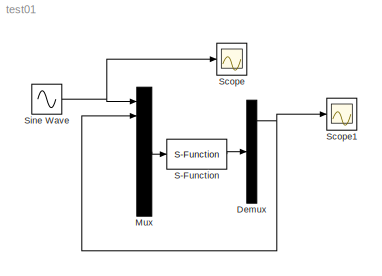
MODEL test01
KIND model
CONFIG AbsTol = auto
CONFIG FixedStep = 1/4000
CONFIG MaxStep = auto
CONFIG MinStep = auto
CONFIG RelTol = 1e-3
CONFIG Solver = FixedStepDiscrete
CONFIG SolverMode = Auto
CONFIG StartTime = 0.0
CONFIG StopTime = 120
BLOCK [Demux] Demux
  BusSelectionMode = off
  Outputs = 4
  Ports = [1, 4]
BLOCK [Mux] Mux
  DisplayOption = bar
  Inputs = 8
  Ports = [8, 1]
BLOCK [S-Function] S-Function
  FunctionName = sf_qadscope
  OpenFcn = clear all; rtscope
  Parameters = 4000
  PortCounts = []
  Ports = [1, 1]
  SFunctionModules = ''
BLOCK [Scope] Scope
  DataFormat = StructureWithTime
  Decimation = 1
  Floating = off
  Grid = on
  LimitDataPoints = on
  MaxDataPoints = 5000
  NumInputPorts = 1
  Ports = [1]
  SampleInput = off
  SampleTime = 0
  SaveName = ScopeData
  SaveToWorkspace = off
  TickLabels = OneTimeTick
  TimeRange = 1
  YMax = 5
  YMin = -5
  ZoomMode = on
BLOCK [Scope] Scope1
  DataFormat = StructureWithTime
  Decimation = 1
  Floating = off
  Grid = on
  LimitDataPoints = on
  MaxDataPoints = 5000
  NumInputPorts = 1
  Ports = [1]
  SampleInput = off
  SampleTime = 0
  SaveName = ScopeData1
  SaveToWorkspace = off
  TickLabels = OneTimeTick
  TimeRange = 1
  YMax = 1
  YMin = -1
  ZoomMode = on
BLOCK [Sin] Sine Wave
  Amplitude = 1
  Bias = 0
  Frequency = 2*pi*100
  Offset = 0
  Phase = 0
  SampleTime = 0
  Samples = 10
  SineType = Time-based
  VectorParams1D = on
NET Demux:1 -> Mux:2, Scope1:1
LINE Mux:1 -> S-Function:1
LINE S-Function:1 -> Demux:1
NET Sine Wave:1 -> Mux:1, Scope:1
note: NET lines group one-source signal fan-out (src -> all destinations, sorted); 1:1 wires keep LINE
